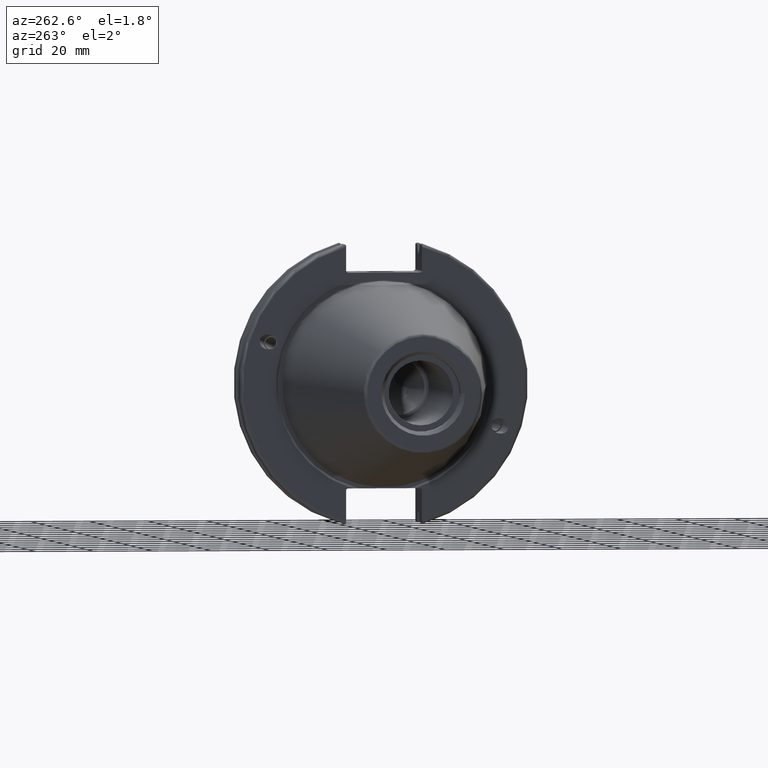
[diagram: clean part render]
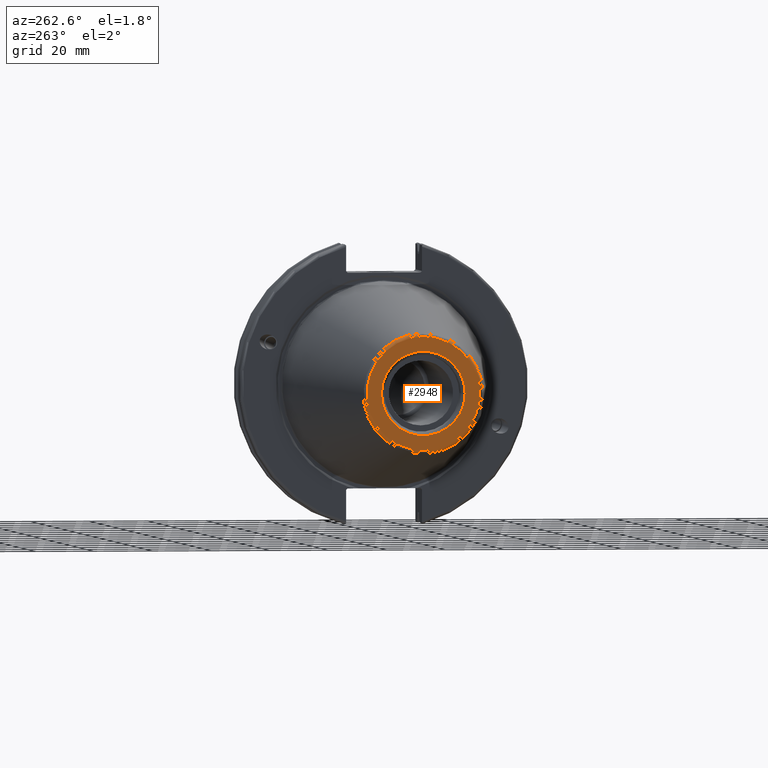
[diagram: same view with one face highlighted and labeled with its STEP entity id]
A machine part, auxiliary view. The second image highlights one B-rep face of the part: STEP entity #2948.
In plain terms, the highlighted planar face has unit normal (-1, 0, 0).
Its self-contained STEP definition (entity closure, byte-faithful):
#589=FACE_BOUND('',#903,.T.);
#619=PLANE('',#3256);
#719=FACE_OUTER_BOUND('',#902,.T.);
#902=EDGE_LOOP('',(#2289));
#903=EDGE_LOOP('',(#2290));
#1095=CIRCLE('',#3255,19.2435889303637);
#1096=CIRCLE('',#3257,14.2875);
#1336=VERTEX_POINT('',#5197);
#1337=VERTEX_POINT('',#5201);
#1695=EDGE_CURVE('',#1336,#1336,#1095,.T.);
#1696=EDGE_CURVE('',#1337,#1337,#1096,.T.);
#2289=ORIENTED_EDGE('',*,*,#1695,.F.);
#2290=ORIENTED_EDGE('',*,*,#1696,.T.);
#2948=ADVANCED_FACE('',(#719,#589),#619,.T.);
#3255=AXIS2_PLACEMENT_3D('',#5199,#3802,#3803);
#3256=AXIS2_PLACEMENT_3D('',#5200,#3804,#3805);
#3257=AXIS2_PLACEMENT_3D('',#5202,#3806,#3807);
#3802=DIRECTION('center_axis',(1.,0.,0.));
#3803=DIRECTION('ref_axis',(0.,-1.,1.83697019872103E-16));
#3804=DIRECTION('center_axis',(-1.,0.,0.));
#3805=DIRECTION('ref_axis',(0.,0.,1.));
#3806=DIRECTION('center_axis',(1.,0.,0.));
#3807=DIRECTION('ref_axis',(0.,0.,-1.));
#5197=CARTESIAN_POINT('',(-101.6,-2.35665995876774E-15,19.2435889303637));
#5199=CARTESIAN_POINT('Origin',(-101.6,0.,0.));
#5200=CARTESIAN_POINT('Origin',(-101.6,20.1083333333333,0.));
#5201=CARTESIAN_POINT('',(-101.6,-14.2875,-1.74971411428178E-15));
#5202=CARTESIAN_POINT('Origin',(-101.6,0.,0.));